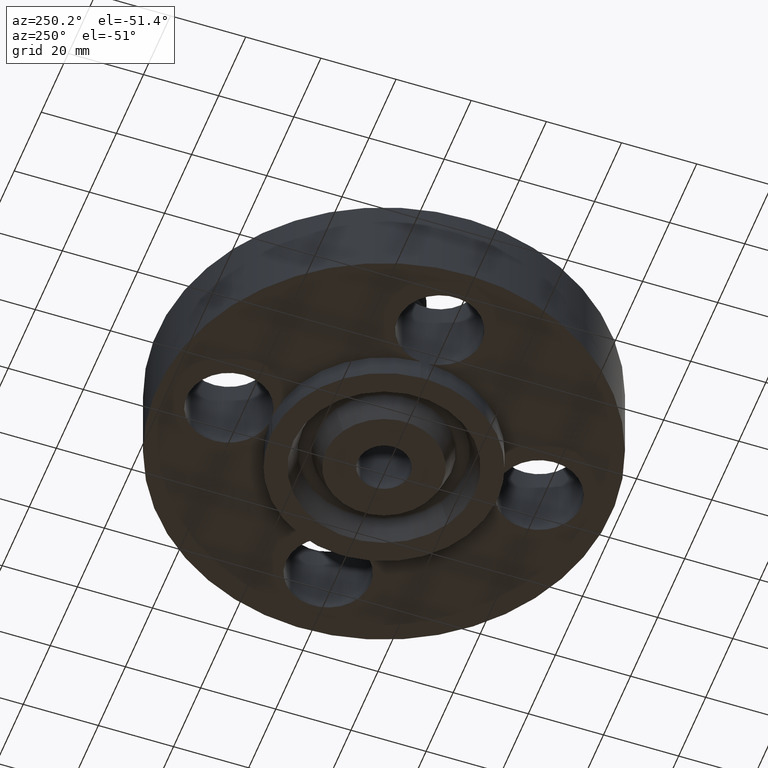
[diagram: clean part render]
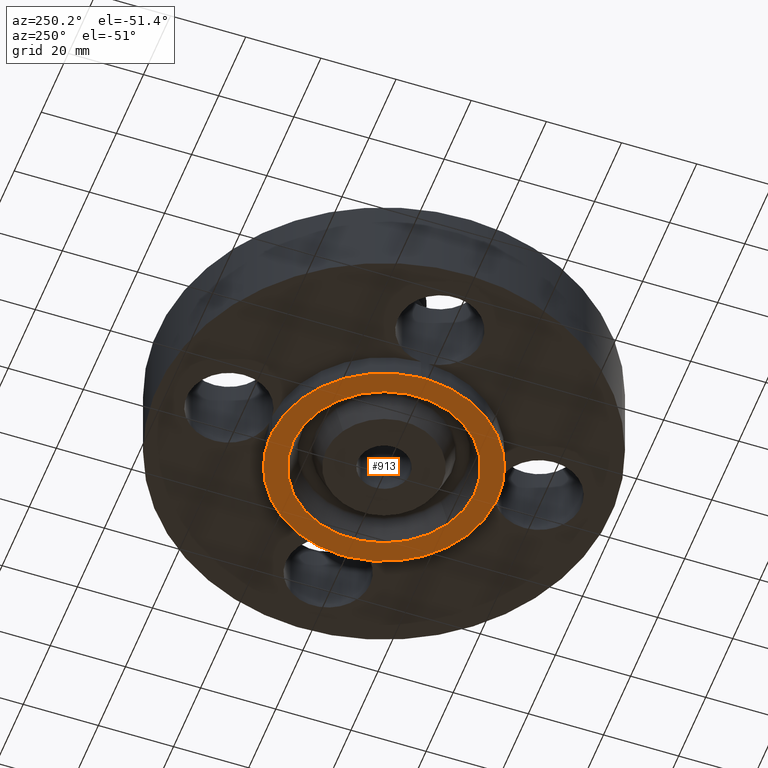
[diagram: same view with one face highlighted and labeled with its STEP entity id]
A machine part, auxiliary view. The second image highlights one B-rep face of the part: STEP entity #913.
In plain terms, the highlighted planar face has unit normal (0, 0, -1).
Its self-contained STEP definition (entity closure, byte-faithful):
#91=AXIS2_PLACEMENT_3D('Circle Axis2P3D',#89,#90,$) ;
#145=AXIS2_PLACEMENT_3D('Circle Axis2P3D',#143,#144,$) ;
#489=AXIS2_PLACEMENT_3D('Circle Axis2P3D',#487,#488,$) ;
#531=AXIS2_PLACEMENT_3D('Circle Axis2P3D',#529,#530,$) ;
#550=AXIS2_PLACEMENT_3D('Circle Axis2P3D',#548,#549,$) ;
#592=AXIS2_PLACEMENT_3D('Circle Axis2P3D',#590,#591,$) ;
#611=AXIS2_PLACEMENT_3D('Circle Axis2P3D',#609,#610,$) ;
#755=AXIS2_PLACEMENT_3D('Circle Axis2P3D',#753,#754,$) ;
#807=AXIS2_PLACEMENT_3D('Circle Axis2P3D',#805,#806,$) ;
#859=AXIS2_PLACEMENT_3D('Circle Axis2P3D',#857,#858,$) ;
#881=AXIS2_PLACEMENT_3D('Plane Axis2P3D',#878,#879,#880) ;
#897=AXIS2_PLACEMENT_3D('Circle Axis2P3D',#895,#896,$) ;
#906=AXIS2_PLACEMENT_3D('Circle Axis2P3D',#904,#905,$) ;
#86=CARTESIAN_POINT('Vertex',(0.0400333532822,1.186825,-0.250000000001)) ;
#89=CARTESIAN_POINT('Axis2P3D Location',(0.,1.62500000001,-0.250000000001)) ;
#93=CARTESIAN_POINT('Vertex',(-0.0400333532822,1.186825,-0.250000000001)) ;
#140=CARTESIAN_POINT('Vertex',(0.569317827095,1.04212929225,-0.250000000001)) ;
#143=CARTESIAN_POINT('Axis2P3D Location',(0.,0.,-0.250000000001)) ;
#487=CARTESIAN_POINT('Axis2P3D Location',(0.,0.,-0.250000000001)) ;
#491=CARTESIAN_POINT('Vertex',(-0.569317827095,-1.04212929225,-0.250000000001)) ;
#493=CARTESIAN_POINT('Vertex',(-1.186825,-0.0400333532821,-0.250000000001)) ;
#529=CARTESIAN_POINT('Axis2P3D Location',(0.,0.,-0.250000000001)) ;
#533=CARTESIAN_POINT('Vertex',(-1.186825,0.0400333532821,-0.250000000001)) ;
#548=CARTESIAN_POINT('Axis2P3D Location',(0.,0.,-0.250000000001)) ;
#552=CARTESIAN_POINT('Vertex',(1.186825,-0.0400333532821,-0.250000000001)) ;
#554=CARTESIAN_POINT('Vertex',(0.0400333532821,-1.186825,-0.250000000001)) ;
#590=CARTESIAN_POINT('Axis2P3D Location',(0.,0.,-0.250000000001)) ;
#594=CARTESIAN_POINT('Vertex',(-0.0400333532821,-1.186825,-0.250000000001)) ;
#609=CARTESIAN_POINT('Axis2P3D Location',(0.,0.,-0.250000000001)) ;
#613=CARTESIAN_POINT('Vertex',(1.186825,0.0400333532821,-0.250000000001)) ;
#753=CARTESIAN_POINT('Axis2P3D Location',(1.62500000001,-1.8023868212E-016,-0.250000000001)) ;
#805=CARTESIAN_POINT('Axis2P3D Location',(1.99005104862E-016,-1.62500000001,-0.250000000001)) ;
#857=CARTESIAN_POINT('Axis2P3D Location',(-1.62500000001,-2.98507657293E-016,-0.250000000001)) ;
#878=CARTESIAN_POINT('Axis2P3D Location',(0.,0.273000000001,-0.250000000001)) ;
#895=CARTESIAN_POINT('Axis2P3D Location',(3.49676543189E-017,-2.09805925913E-016,-0.250000000001)) ;
#899=CARTESIAN_POINT('Vertex',(0.457132251061,-0.836774972766,-0.250000000001)) ;
#901=CARTESIAN_POINT('Vertex',(-0.457132251061,0.836774972766,-0.250000000001)) ;
#904=CARTESIAN_POINT('Axis2P3D Location',(1.04902962957E-016,-6.99353086378E-017,-0.250000000001)) ;
#90=DIRECTION('Axis2P3D Direction',(0.,-0.,-0.0393700787402)) ;
#144=DIRECTION('Axis2P3D Direction',(0.,0.,-0.0393700787402)) ;
#488=DIRECTION('Axis2P3D Direction',(0.,0.,-0.0393700787402)) ;
#530=DIRECTION('Axis2P3D Direction',(0.,0.,-0.0393700787402)) ;
#549=DIRECTION('Axis2P3D Direction',(0.,0.,-0.0393700787402)) ;
#591=DIRECTION('Axis2P3D Direction',(0.,0.,-0.0393700787402)) ;
#610=DIRECTION('Axis2P3D Direction',(0.,0.,-0.0393700787402)) ;
#754=DIRECTION('Axis2P3D Direction',(0.,-0.,-0.0393700787402)) ;
#806=DIRECTION('Axis2P3D Direction',(-0.,0.,-0.0393700787402)) ;
#858=DIRECTION('Axis2P3D Direction',(0.,0.,-0.0393700787402)) ;
#879=DIRECTION('Axis2P3D Direction',(0.,0.,-0.0393700787402)) ;
#880=DIRECTION('Axis2P3D XDirection',(0.0393700787402,0.,0.)) ;
#896=DIRECTION('Axis2P3D Direction',(0.,0.,-0.0393700787402)) ;
#905=DIRECTION('Axis2P3D Direction',(0.,0.,-0.0393700787402)) ;
#884=ORIENTED_EDGE('',*,*,#556,.T.) ;
#885=ORIENTED_EDGE('',*,*,#809,.F.) ;
#886=ORIENTED_EDGE('',*,*,#596,.T.) ;
#887=ORIENTED_EDGE('',*,*,#495,.T.) ;
#888=ORIENTED_EDGE('',*,*,#861,.F.) ;
#889=ORIENTED_EDGE('',*,*,#535,.T.) ;
#890=ORIENTED_EDGE('',*,*,#95,.F.) ;
#891=ORIENTED_EDGE('',*,*,#147,.T.) ;
#892=ORIENTED_EDGE('',*,*,#615,.T.) ;
#893=ORIENTED_EDGE('',*,*,#757,.F.) ;
#910=ORIENTED_EDGE('',*,*,#903,.F.) ;
#911=ORIENTED_EDGE('',*,*,#908,.F.) ;
#912=FACE_BOUND('',#909,.T.) ;
#913=ADVANCED_FACE('PartBody',(#894,#912),#882,.T.) ;
#92=CIRCLE('generated circle',#91,0.440000000002) ;
#146=CIRCLE('generated circle',#145,1.1875) ;
#490=CIRCLE('generated circle',#489,1.1875) ;
#532=CIRCLE('generated circle',#531,1.1875) ;
#551=CIRCLE('generated circle',#550,1.1875) ;
#593=CIRCLE('generated circle',#592,1.1875) ;
#612=CIRCLE('generated circle',#611,1.1875) ;
#756=CIRCLE('generated circle',#755,0.440000000002) ;
#808=CIRCLE('generated circle',#807,0.440000000002) ;
#860=CIRCLE('generated circle',#859,0.440000000002) ;
#898=CIRCLE('generated circle',#897,0.953500000004) ;
#907=CIRCLE('generated circle',#906,0.953500000004) ;
#95=EDGE_CURVE('',#87,#94,#92,.T.) ;
#147=EDGE_CURVE('',#87,#141,#146,.T.) ;
#495=EDGE_CURVE('',#492,#494,#490,.T.) ;
#535=EDGE_CURVE('',#534,#94,#532,.T.) ;
#556=EDGE_CURVE('',#553,#555,#551,.T.) ;
#596=EDGE_CURVE('',#595,#492,#593,.T.) ;
#615=EDGE_CURVE('',#141,#614,#612,.T.) ;
#757=EDGE_CURVE('',#553,#614,#756,.T.) ;
#809=EDGE_CURVE('',#595,#555,#808,.T.) ;
#861=EDGE_CURVE('',#534,#494,#860,.T.) ;
#903=EDGE_CURVE('',#900,#902,#898,.T.) ;
#908=EDGE_CURVE('',#902,#900,#907,.T.) ;
#883=EDGE_LOOP('',(#884,#885,#886,#887,#888,#889,#890,#891,#892,#893)) ;
#909=EDGE_LOOP('',(#910,#911)) ;
#894=FACE_OUTER_BOUND('',#883,.T.) ;
#882=PLANE('',#881) ;
#87=VERTEX_POINT('',#86) ;
#94=VERTEX_POINT('',#93) ;
#141=VERTEX_POINT('',#140) ;
#492=VERTEX_POINT('',#491) ;
#494=VERTEX_POINT('',#493) ;
#534=VERTEX_POINT('',#533) ;
#553=VERTEX_POINT('',#552) ;
#555=VERTEX_POINT('',#554) ;
#595=VERTEX_POINT('',#594) ;
#614=VERTEX_POINT('',#613) ;
#900=VERTEX_POINT('',#899) ;
#902=VERTEX_POINT('',#901) ;